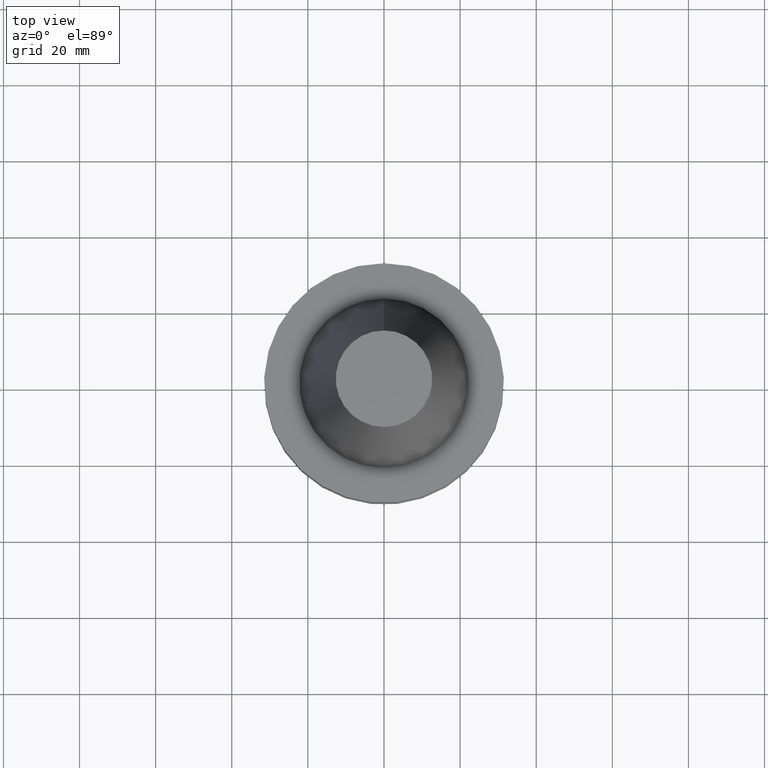
[diagram: clean part render]
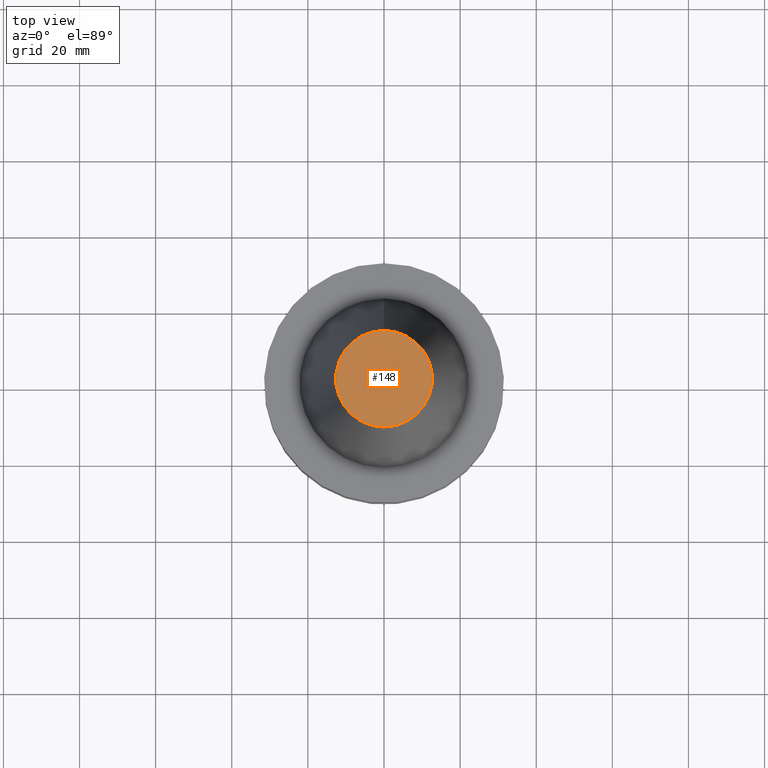
[diagram: same view with one face highlighted and labeled with its STEP entity id]
A machine part, top view. The second image highlights one B-rep face of the part: STEP entity #148.
In plain terms, the highlighted planar face has unit normal (-0, 0, 1).
Its self-contained STEP definition (entity closure, byte-faithful):
#95=EDGE_CURVE('Unnamed[1]',#231,#231,#232,.T.);
#148=ADVANCED_FACE('Unnamed[1]',(#313),#314,.T.);
#231=VERTEX_POINT('',#414);
#232=CIRCLE('',#415,12.6875000000001);
#313=FACE_OUTER_BOUND('',#515,.T.);
#314=PLANE('',#516);
#414=CARTESIAN_POINT('',(-4.00459503321185E-015,12.6875000000002,65.4000000000001));
#415=AXIS2_PLACEMENT_3D('',#611,#612,#613);
#515=EDGE_LOOP('',(#702));
#516=AXIS2_PLACEMENT_3D('',#703,#704,#705);
#611=CARTESIAN_POINT('',(-4.00459503321185E-015,7.7149411856749E-014,65.4000000000001));
#612=DIRECTION('',(6.12323399573677E-017,-1.8933396912507E-017,-1.0));
#613=DIRECTION('',(-3.66781653447502E-033,1.0,-1.8933396912507E-017));
#702=ORIENTED_EDGE('',*,*,#95,.F.);
#703=CARTESIAN_POINT('',(-4.00459503321185E-015,6.34375000000014,65.4000000000001));
#704=DIRECTION('',(-6.12323399573677E-017,9.97602686800683E-016,1.0));
#705=DIRECTION('',(-5.62583941297938E-032,-1.0,9.97602686800683E-016));